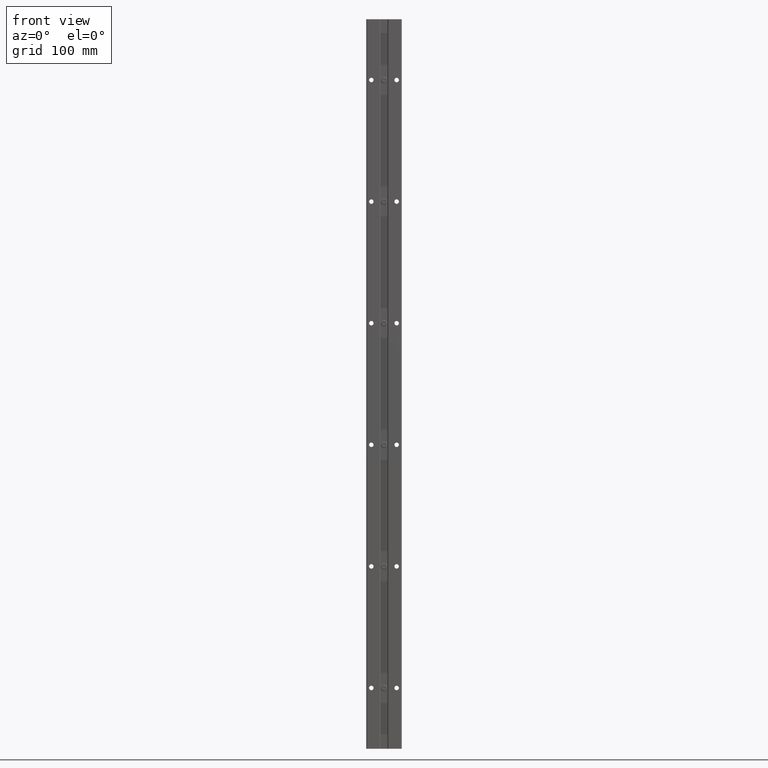
[diagram: clean part render]
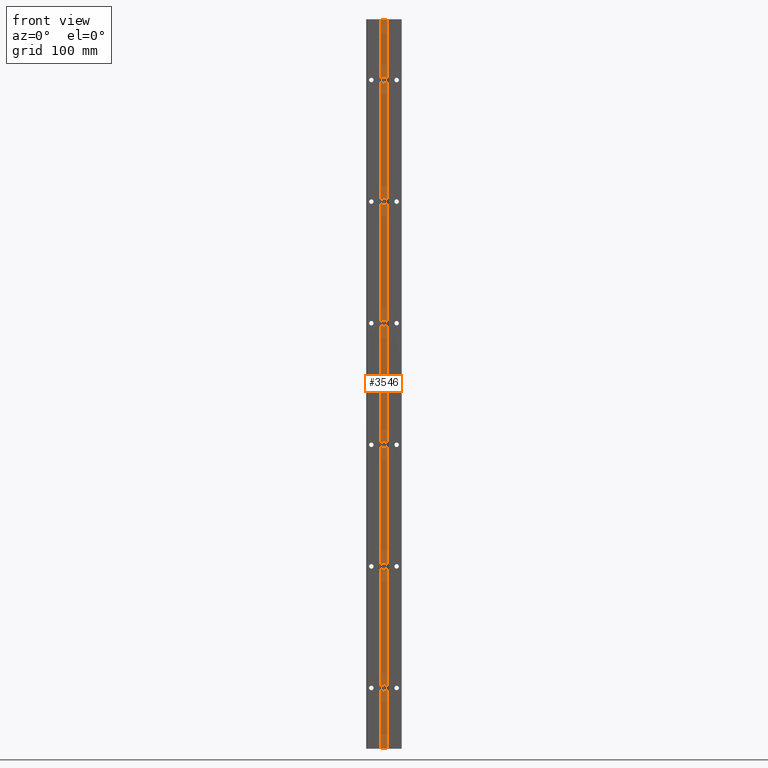
[diagram: same view with one face highlighted and labeled with its STEP entity id]
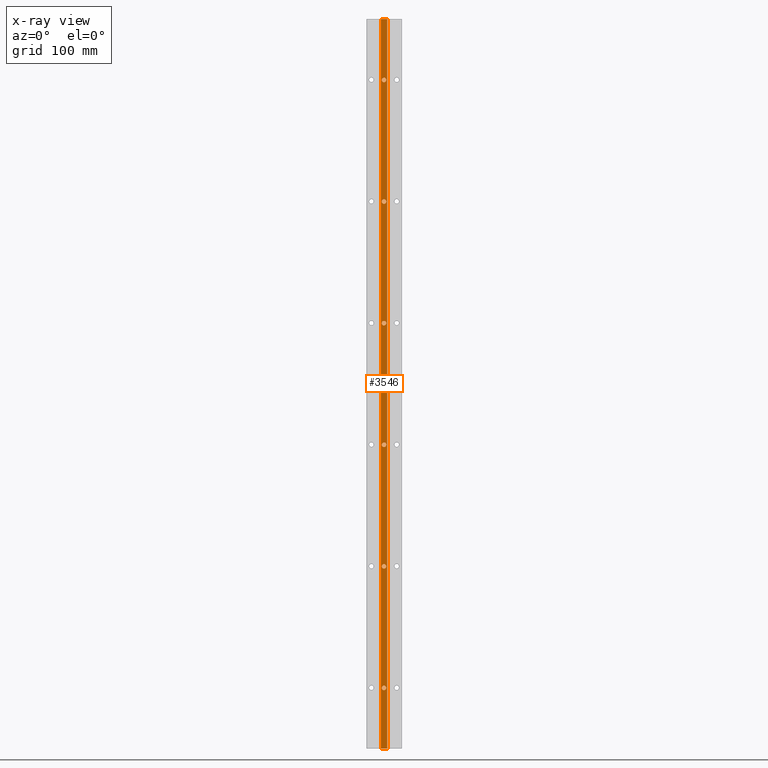
[diagram: x-ray of the same camera — body ghosted, the highlighted face saturated]
A machine part, front view. The second image highlights one B-rep face of the part: STEP entity #3546.
The next image is the same camera in x-ray: the body ghosted, the highlighted face saturated — about 0% of this face is hidden behind the body in this view.
In plain terms, the highlighted planar face has unit normal (-0, -1, 0).
Its self-contained STEP definition (entity closure, byte-faithful):
#100 = ORIENTED_EDGE ( 'NONE', *, *, #6805, .F. ) ;
#145 = EDGE_CURVE ( 'NONE', #11844, #2759, #8740, .T. ) ;
#224 = PLANE ( 'NONE',  #13322 ) ;
#485 = DIRECTION ( 'NONE',  ( 1.000000000000000000, -6.180651569376158219E-16, 0.000000000000000000 ) ) ;
#656 = CARTESIAN_POINT ( 'NONE',  ( 4.372847730754339432E-32, 0.2050000000000004041, -33.11050000000000182 ) ) ;
#818 = EDGE_CURVE ( 'NONE', #5827, #13099, #1122, .T. ) ;
#845 = DIRECTION ( 'NONE',  ( 6.402768735150685389E-16, 1.000000000000000000, -0.000000000000000000 ) ) ;
#1079 = DIRECTION ( 'NONE',  ( 6.402768735150685389E-16, 1.000000000000000000, -0.000000000000000000 ) ) ;
#1122 = CIRCLE ( 'NONE', #2912, 0.1105000000000000565 ) ;
#1271 = LINE ( 'NONE', #9617, #6403 ) ;
#1342 = CARTESIAN_POINT ( 'NONE',  ( 0.000000000000000000, 0.2050000000000004041, -3.000000000000000444 ) ) ;
#1418 = DIRECTION ( 'NONE',  ( 1.000000000000000000, -6.180651569376158219E-16, 0.000000000000000000 ) ) ;
#1525 = ORIENTED_EDGE ( 'NONE', *, *, #12574, .T. ) ;
#1644 = ORIENTED_EDGE ( 'NONE', *, *, #818, .T. ) ;
#1810 = CARTESIAN_POINT ( 'NONE',  ( 1.353234713057806428E-17, 0.2050000000000004041, -26.88950000000000173 ) ) ;
#1882 = CIRCLE ( 'NONE', #7546, 0.1105000000000000565 ) ;
#1885 = CARTESIAN_POINT ( 'NONE',  ( -0.1599999999999985600, 0.2050000000000006539, -38.10463218188032641 ) ) ;
#1912 = CARTESIAN_POINT ( 'NONE',  ( -0.1599999999999985600, 0.2050000000000006262, 0.000000000000000000 ) ) ;
#1934 = DIRECTION ( 'NONE',  ( 1.000000000000000000, -6.180651569376158219E-16, 0.000000000000000000 ) ) ;
#1946 = EDGE_CURVE ( 'NONE', #11185, #6776, #5198, .T. ) ;
#2093 = VECTOR ( 'NONE', #6056, 39.37007874015748143 ) ;
#2120 = VERTEX_POINT ( 'NONE', #7503 ) ;
#2221 = VERTEX_POINT ( 'NONE', #3270 ) ;
#2293 = FACE_BOUND ( 'NONE', #10788, .T. ) ;
#2373 = EDGE_CURVE ( 'NONE', #2120, #6776, #3452, .T. ) ;
#2449 = CARTESIAN_POINT ( 'NONE',  ( -0.1599999999999985600, 0.2050000000000006539, -36.00000000000000000 ) ) ;
#2456 = EDGE_CURVE ( 'NONE', #2221, #12317, #8616, .T. ) ;
#2457 = CARTESIAN_POINT ( 'NONE',  ( 0.000000000000000000, 0.2050000000000004041, -27.00000000000000355 ) ) ;
#2483 = FACE_BOUND ( 'NONE', #9863, .T. ) ;
#2511 = CARTESIAN_POINT ( 'NONE',  ( 1.353234713057833237E-17, 0.2050000000000004041, -14.88949999999999996 ) ) ;
#2580 = CARTESIAN_POINT ( 'NONE',  ( 1.353234713057806428E-17, 0.2050000000000004041, -20.88950000000000173 ) ) ;
#2649 = DIRECTION ( 'NONE',  ( 6.402768735150685389E-16, 1.000000000000000000, -0.000000000000000000 ) ) ;
#2759 = VERTEX_POINT ( 'NONE', #5231 ) ;
#2912 = AXIS2_PLACEMENT_3D ( 'NONE', #5636, #5689, #4421 ) ;
#2922 = CARTESIAN_POINT ( 'NONE',  ( 0.1599999999999980327, 0.2050000000000004041, 0.000000000000000000 ) ) ;
#3048 = VERTEX_POINT ( 'NONE', #656 ) ;
#3166 = DIRECTION ( 'NONE',  ( 1.000000000000000000, -6.180651569376158219E-16, 0.000000000000000000 ) ) ;
#3200 = VERTEX_POINT ( 'NONE', #12838 ) ;
#3217 = EDGE_CURVE ( 'NONE', #5437, #4948, #10711, .T. ) ;
#3270 = CARTESIAN_POINT ( 'NONE',  ( 1.353234713057833237E-17, 0.2050000000000004041, -2.889500000000000401 ) ) ;
#3278 = CARTESIAN_POINT ( 'NONE',  ( -0.1599999999999985600, 0.2050000000000006539, 0.000000000000000000 ) ) ;
#3330 = DIRECTION ( 'NONE',  ( 1.000000000000000000, -6.402768735150685389E-16, 0.000000000000000000 ) ) ;
#3339 = ORIENTED_EDGE ( 'NONE', *, *, #10717, .T. ) ;
#3383 = FACE_BOUND ( 'NONE', #13066, .T. ) ;
#3388 = AXIS2_PLACEMENT_3D ( 'NONE', #1342, #5524, #9694 ) ;
#3448 = DIRECTION ( 'NONE',  ( -6.402768735150685389E-16, -1.000000000000000000, 0.000000000000000000 ) ) ;
#3452 = LINE ( 'NONE', #10801, #13036 ) ;
#3546 = ADVANCED_FACE ( 'NONE', ( #3383, #2483, #11693, #2293, #4604, #12937, #3580 ), #224, .T. ) ;
#3580 = FACE_OUTER_BOUND ( 'NONE', #12041, .T. ) ;
#4421 = DIRECTION ( 'NONE',  ( 1.000000000000000000, -6.180651569376158219E-16, 0.000000000000000000 ) ) ;
#4439 = DIRECTION ( 'NONE',  ( -1.000000000000000000, 6.402768735150685389E-16, 0.000000000000000000 ) ) ;
#4460 = CIRCLE ( 'NONE', #8375, 0.1105000000000000565 ) ;
#4604 = FACE_BOUND ( 'NONE', #8557, .T. ) ;
#4607 = DIRECTION ( 'NONE',  ( 0.000000000000000000, 0.000000000000000000, 1.000000000000000000 ) ) ;
#4686 = ORIENTED_EDGE ( 'NONE', *, *, #2456, .T. ) ;
#4738 = CARTESIAN_POINT ( 'NONE',  ( 4.372847730754425919E-32, 0.2050000000000004041, -9.110500000000001819 ) ) ;
#4772 = CARTESIAN_POINT ( 'NONE',  ( 4.372847730754425919E-32, 0.2050000000000004041, -3.110500000000000043 ) ) ;
#4948 = VERTEX_POINT ( 'NONE', #11569 ) ;
#4988 = DIRECTION ( 'NONE',  ( 1.000000000000000000, -6.180651569376158219E-16, 0.000000000000000000 ) ) ;
#5198 = LINE ( 'NONE', #1912, #8200 ) ;
#5231 = CARTESIAN_POINT ( 'NONE',  ( 4.372847730754339432E-32, 0.2050000000000004041, -27.11050000000000537 ) ) ;
#5340 = ORIENTED_EDGE ( 'NONE', *, *, #145, .T. ) ;
#5437 = VERTEX_POINT ( 'NONE', #2580 ) ;
#5454 = EDGE_LOOP ( 'NONE', ( #1525, #4686 ) ) ;
#5503 = CARTESIAN_POINT ( 'NONE',  ( 4.372847730754425919E-32, 0.2050000000000004041, -15.11050000000000004 ) ) ;
#5524 = DIRECTION ( 'NONE',  ( 6.402768735150685389E-16, 1.000000000000000000, -0.000000000000000000 ) ) ;
#5543 = DIRECTION ( 'NONE',  ( 1.000000000000000000, -6.180651569376158219E-16, 0.000000000000000000 ) ) ;
#5619 = CIRCLE ( 'NONE', #10484, 0.1105000000000000565 ) ;
#5632 = DIRECTION ( 'NONE',  ( 6.402768735150685389E-16, 1.000000000000000000, -0.000000000000000000 ) ) ;
#5636 = CARTESIAN_POINT ( 'NONE',  ( 0.000000000000000000, 0.2050000000000004041, -15.00000000000000000 ) ) ;
#5689 = DIRECTION ( 'NONE',  ( 6.402768735150685389E-16, 1.000000000000000000, -0.000000000000000000 ) ) ;
#5753 = DIRECTION ( 'NONE',  ( 6.402768735150685389E-16, 1.000000000000000000, -0.000000000000000000 ) ) ;
#5827 = VERTEX_POINT ( 'NONE', #2511 ) ;
#5934 = EDGE_CURVE ( 'NONE', #3048, #13289, #4460, .T. ) ;
#6056 = DIRECTION ( 'NONE',  ( 0.000000000000000000, 0.000000000000000000, 1.000000000000000000 ) ) ;
#6403 = VECTOR ( 'NONE', #4439, 39.37007874015748143 ) ;
#6489 = EDGE_CURVE ( 'NONE', #2120, #10324, #1271, .T. ) ;
#6596 = DIRECTION ( 'NONE',  ( 6.402768735150685389E-16, 1.000000000000000000, -0.000000000000000000 ) ) ;
#6619 = CARTESIAN_POINT ( 'NONE',  ( 1.353234713057806428E-17, 0.2050000000000004041, -32.88949999999999818 ) ) ;
#6725 = AXIS2_PLACEMENT_3D ( 'NONE', #13156, #5753, #9949 ) ;
#6776 = VERTEX_POINT ( 'NONE', #2922 ) ;
#6805 = EDGE_CURVE ( 'NONE', #10324, #11185, #13298, .T. ) ;
#6814 = EDGE_CURVE ( 'NONE', #9002, #3200, #12847, .T. ) ;
#6960 = DIRECTION ( 'NONE',  ( 6.402768735150685389E-16, 1.000000000000000000, -0.000000000000000000 ) ) ;
#7268 = ORIENTED_EDGE ( 'NONE', *, *, #7295, .T. ) ;
#7295 = EDGE_CURVE ( 'NONE', #2759, #11844, #1882, .T. ) ;
#7503 = CARTESIAN_POINT ( 'NONE',  ( 0.1599999999999980327, 0.2050000000000004041, -36.00000000000000000 ) ) ;
#7546 = AXIS2_PLACEMENT_3D ( 'NONE', #2457, #6596, #1418 ) ;
#7602 = DIRECTION ( 'NONE',  ( 1.000000000000000000, -6.402768735150685389E-16, 0.000000000000000000 ) ) ;
#7965 = EDGE_CURVE ( 'NONE', #13099, #5827, #11950, .T. ) ;
#7983 = AXIS2_PLACEMENT_3D ( 'NONE', #9429, #12576, #3166 ) ;
#8111 = ORIENTED_EDGE ( 'NONE', *, *, #5934, .T. ) ;
#8173 = DIRECTION ( 'NONE',  ( 1.000000000000000000, -6.180651569376158219E-16, 0.000000000000000000 ) ) ;
#8200 = VECTOR ( 'NONE', #3330, 39.37007874015748143 ) ;
#8375 = AXIS2_PLACEMENT_3D ( 'NONE', #13187, #9006, #11110 ) ;
#8424 = AXIS2_PLACEMENT_3D ( 'NONE', #10259, #845, #8173 ) ;
#8557 = EDGE_LOOP ( 'NONE', ( #8111, #11367 ) ) ;
#8595 = ORIENTED_EDGE ( 'NONE', *, *, #7965, .T. ) ;
#8616 = CIRCLE ( 'NONE', #3388, 0.1105000000000000565 ) ;
#8740 = CIRCLE ( 'NONE', #10961, 0.1105000000000000565 ) ;
#9002 = VERTEX_POINT ( 'NONE', #4738 ) ;
#9006 = DIRECTION ( 'NONE',  ( 6.402768735150685389E-16, 1.000000000000000000, -0.000000000000000000 ) ) ;
#9046 = ORIENTED_EDGE ( 'NONE', *, *, #6489, .F. ) ;
#9136 = EDGE_CURVE ( 'NONE', #13289, #3048, #10903, .T. ) ;
#9362 = AXIS2_PLACEMENT_3D ( 'NONE', #9977, #2649, #4988 ) ;
#9429 = CARTESIAN_POINT ( 'NONE',  ( 0.000000000000000000, 0.2050000000000004041, -15.00000000000000000 ) ) ;
#9617 = CARTESIAN_POINT ( 'NONE',  ( -0.1599999999999985600, 0.2050000000000006262, -36.00000000000000000 ) ) ;
#9694 = DIRECTION ( 'NONE',  ( 1.000000000000000000, -6.180651569376158219E-16, 0.000000000000000000 ) ) ;
#9712 = DIRECTION ( 'NONE',  ( 6.402768735150685389E-16, 1.000000000000000000, -0.000000000000000000 ) ) ;
#9832 = CARTESIAN_POINT ( 'NONE',  ( 0.000000000000000000, 0.2050000000000004041, -9.000000000000001776 ) ) ;
#9863 = EDGE_LOOP ( 'NONE', ( #8595, #1644 ) ) ;
#9875 = CARTESIAN_POINT ( 'NONE',  ( 0.000000000000000000, 0.2050000000000004041, -27.00000000000000355 ) ) ;
#9934 = ORIENTED_EDGE ( 'NONE', *, *, #1946, .F. ) ;
#9949 = DIRECTION ( 'NONE',  ( 1.000000000000000000, -6.180651569376158219E-16, 0.000000000000000000 ) ) ;
#9977 = CARTESIAN_POINT ( 'NONE',  ( 0.000000000000000000, 0.2050000000000004041, -21.00000000000000355 ) ) ;
#10106 = EDGE_CURVE ( 'NONE', #3200, #9002, #5619, .T. ) ;
#10259 = CARTESIAN_POINT ( 'NONE',  ( 0.000000000000000000, 0.2050000000000004041, -9.000000000000001776 ) ) ;
#10324 = VERTEX_POINT ( 'NONE', #2449 ) ;
#10484 = AXIS2_PLACEMENT_3D ( 'NONE', #9832, #6960, #12064 ) ;
#10711 = CIRCLE ( 'NONE', #9362, 0.1105000000000000565 ) ;
#10717 = EDGE_CURVE ( 'NONE', #4948, #5437, #12275, .T. ) ;
#10763 = ORIENTED_EDGE ( 'NONE', *, *, #3217, .T. ) ;
#10788 = EDGE_LOOP ( 'NONE', ( #7268, #5340 ) ) ;
#10793 = CARTESIAN_POINT ( 'NONE',  ( 0.000000000000000000, 0.2050000000000004041, -3.000000000000000444 ) ) ;
#10801 = CARTESIAN_POINT ( 'NONE',  ( 0.1599999999999980327, 0.2050000000000004041, -38.10463218188032641 ) ) ;
#10874 = ORIENTED_EDGE ( 'NONE', *, *, #10106, .T. ) ;
#10903 = CIRCLE ( 'NONE', #13582, 0.1105000000000000565 ) ;
#10961 = AXIS2_PLACEMENT_3D ( 'NONE', #9875, #5632, #485 ) ;
#11110 = DIRECTION ( 'NONE',  ( 1.000000000000000000, -6.180651569376158219E-16, 0.000000000000000000 ) ) ;
#11185 = VERTEX_POINT ( 'NONE', #3278 ) ;
#11367 = ORIENTED_EDGE ( 'NONE', *, *, #9136, .T. ) ;
#11545 = CARTESIAN_POINT ( 'NONE',  ( 0.000000000000000000, 0.2050000000000004041, -33.00000000000000000 ) ) ;
#11569 = CARTESIAN_POINT ( 'NONE',  ( 4.372847730754339432E-32, 0.2050000000000004041, -21.11050000000000537 ) ) ;
#11693 = FACE_BOUND ( 'NONE', #12596, .T. ) ;
#11844 = VERTEX_POINT ( 'NONE', #1810 ) ;
#11859 = ORIENTED_EDGE ( 'NONE', *, *, #2373, .T. ) ;
#11950 = CIRCLE ( 'NONE', #7983, 0.1105000000000000565 ) ;
#12041 = EDGE_LOOP ( 'NONE', ( #9046, #11859, #9934, #100 ) ) ;
#12064 = DIRECTION ( 'NONE',  ( 1.000000000000000000, -6.180651569376158219E-16, 0.000000000000000000 ) ) ;
#12086 = CIRCLE ( 'NONE', #13209, 0.1105000000000000565 ) ;
#12275 = CIRCLE ( 'NONE', #6725, 0.1105000000000000565 ) ;
#12317 = VERTEX_POINT ( 'NONE', #4772 ) ;
#12574 = EDGE_CURVE ( 'NONE', #12317, #2221, #12086, .T. ) ;
#12576 = DIRECTION ( 'NONE',  ( 6.402768735150685389E-16, 1.000000000000000000, -0.000000000000000000 ) ) ;
#12596 = EDGE_LOOP ( 'NONE', ( #3339, #10763 ) ) ;
#12838 = CARTESIAN_POINT ( 'NONE',  ( 1.353234713057833237E-17, 0.2050000000000004041, -8.889500000000001734 ) ) ;
#12847 = CIRCLE ( 'NONE', #8424, 0.1105000000000000565 ) ;
#12862 = ORIENTED_EDGE ( 'NONE', *, *, #6814, .T. ) ;
#12875 = CARTESIAN_POINT ( 'NONE',  ( -0.1599999999999985600, 0.2050000000000006262, -38.10463218188032641 ) ) ;
#12937 = FACE_BOUND ( 'NONE', #5454, .T. ) ;
#13036 = VECTOR ( 'NONE', #4607, 39.37007874015748143 ) ;
#13066 = EDGE_LOOP ( 'NONE', ( #12862, #10874 ) ) ;
#13099 = VERTEX_POINT ( 'NONE', #5503 ) ;
#13156 = CARTESIAN_POINT ( 'NONE',  ( 0.000000000000000000, 0.2050000000000004041, -21.00000000000000355 ) ) ;
#13187 = CARTESIAN_POINT ( 'NONE',  ( 0.000000000000000000, 0.2050000000000004041, -33.00000000000000000 ) ) ;
#13209 = AXIS2_PLACEMENT_3D ( 'NONE', #10793, #9712, #5543 ) ;
#13289 = VERTEX_POINT ( 'NONE', #6619 ) ;
#13298 = LINE ( 'NONE', #1885, #2093 ) ;
#13322 = AXIS2_PLACEMENT_3D ( 'NONE', #12875, #3448, #7602 ) ;
#13582 = AXIS2_PLACEMENT_3D ( 'NONE', #11545, #1079, #1934 ) ;